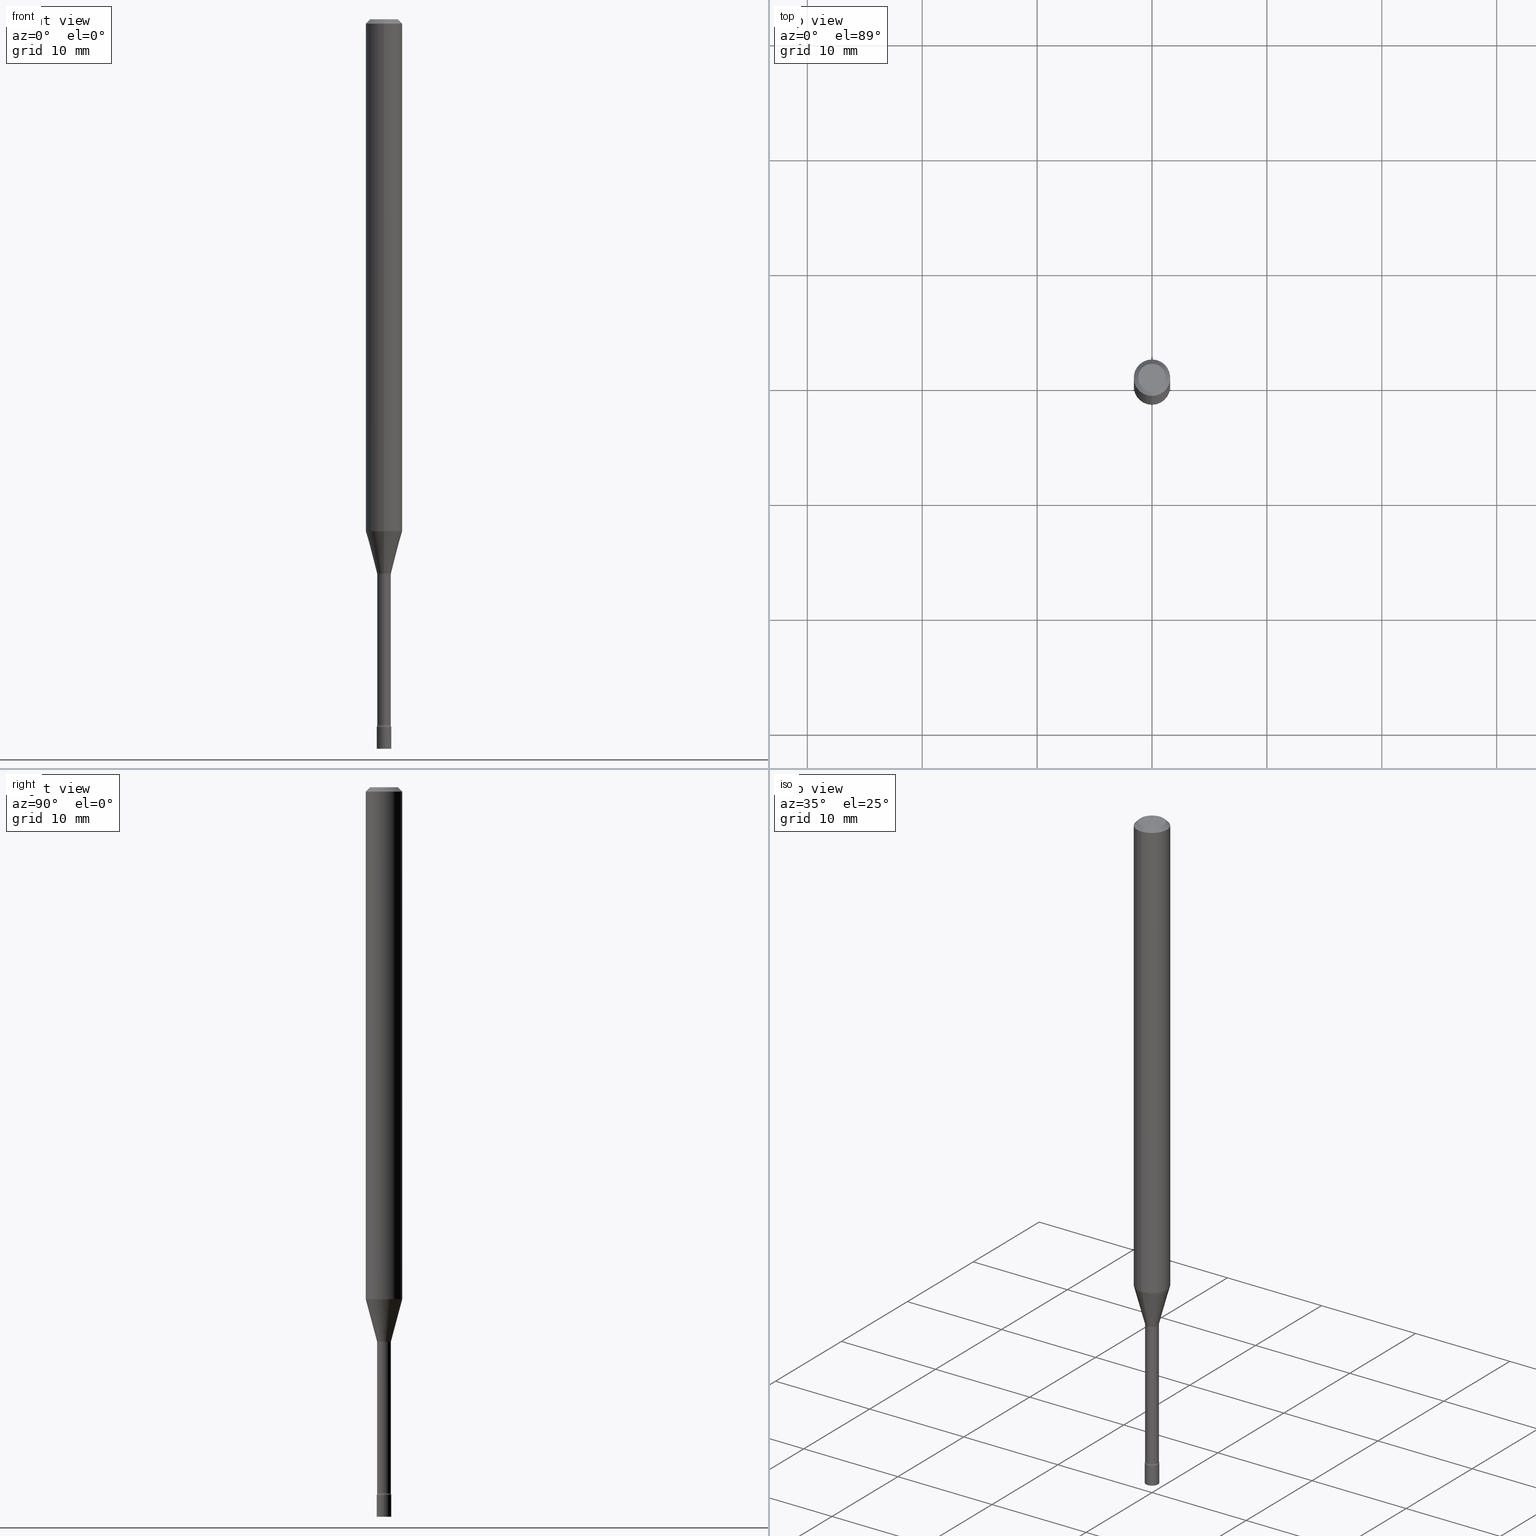
[diagram: canonical four-view strip — front | top / right | iso, engineering-drawing reading convention]
A machine part, canonical four-view strip (front | top / right | iso — engineering-drawing reading convention). The complete STEP part file that produces these views, byte-faithful:
ISO-10303-21;
HEADER;
FILE_DESCRIPTION (( 'STEP AP203' ),
    '1' );
FILE_NAME ('03599.STEP',
    '2024-03-08T22:02:00',
    ( '' ),
    ( '' ),
    'SwSTEP 2.0',
    'SolidWorks 2023',
    '' );
FILE_SCHEMA (( 'CONFIG_CONTROL_DESIGN' ));
ENDSEC;

DATA;
#1 = DIRECTION ( 'NONE',  ( -2.438088387897960049E-29, 3.491481338843145188E-15, 1.000000000000000000 ) ) ;
#2 = VERTEX_POINT ( 'NONE', #168 ) ;
#3 = CIRCLE ( 'NONE', #128, 0.02401111260566398189 ) ;
#4 = CARTESIAN_POINT ( 'NONE',  ( 0.02500000000000000139, -1.745740669421566924E-16, 1.219044193948984123E-30 ) ) ;
#5 = ORIENTED_EDGE ( 'NONE', *, *, #425, .T. ) ;
#6 = COORDINATED_UNIVERSAL_TIME_OFFSET ( 5, 0, .BEHIND. ) ;
#7 = CARTESIAN_POINT ( 'NONE',  ( 0.02500000000000000139, -8.641416313636785031E-15, -2.425000000000000266 ) ) ;
#8 = CALENDAR_DATE ( 2024, 8, 3 ) ;
#9 = EDGE_CURVE ( 'NONE', #40, #66, #244, .T. ) ;
#10 = APPLICATION_PROTOCOL_DEFINITION ( 'international standard', 'config_control_design', 1994, #520 ) ;
#11 = DIRECTION ( 'NONE',  ( -6.982962677686266711E-15, -1.000000000000000000, 0.000000000000000000 ) ) ;
#12 = LOCAL_TIME ( 17, 2, 0.000000000000000000, #334 ) ;
#13 = APPROVAL_STATUS ( 'not_yet_approved' ) ;
#14 = CARTESIAN_POINT ( 'NONE',  ( 1.706092163947695036E-16, 0.02401111260565735178, -1.898092501787273401 ) ) ;
#15 = EDGE_CURVE ( 'NONE', #270, #40, #210, .T. ) ;
#16 = LINE ( 'NONE', #94, #307 ) ;
#17 = CARTESIAN_POINT ( 'NONE',  ( 3.840629472727447874E-16, 0.04749999999999999362, -1.947592745229184365E-16 ) ) ;
#18 = CIRCLE ( 'NONE', #408, 0.02500000000000000139 ) ;
#19 = VERTEX_POINT ( 'NONE', #87 ) ;
#20 = APPROVAL_PERSON_ORGANIZATION ( #419, #357, #456 ) ;
#21 = FACE_OUTER_BOUND ( 'NONE', #305, .T. ) ;
#22 = ORIENTED_EDGE ( 'NONE', *, *, #114, .T. ) ;
#23 = EDGE_CURVE ( 'NONE', #2, #359, #254, .T. ) ;
#24 = CARTESIAN_POINT ( 'NONE',  ( -4.287811248607203282E-16, -0.06250000000000005551, -0.01499999999999981209 ) ) ;
#25 = ORIENTED_EDGE ( 'NONE', *, *, #179, .T. ) ;
#26 = EDGE_CURVE ( 'NONE', #66, #80, #127, .T. ) ;
#27 = APPLICATION_CONTEXT ( 'configuration controlled 3d designs of mechanical parts and assemblies' ) ;
#28 = CARTESIAN_POINT ( 'NONE',  ( -1.640996229256275231E-16, -0.02350000000000003475, 8.205007746749178948E-17 ) ) ;
#29 = ORIENTED_EDGE ( 'NONE', *, *, #494, .F. ) ;
#30 = CIRCLE ( 'NONE', #434, 0.01499999999999998557 ) ;
#31 = DIRECTION ( 'NONE',  ( -1.807323732225330928E-15, -0.2588190451025182970, 0.9659258262890689783 ) ) ;
#32 = ORIENTED_EDGE ( 'NONE', *, *, #125, .T. ) ;
#33 = ADVANCED_FACE ( 'NONE', ( #126 ), #73, .T. ) ;
#34 = DIRECTION ( 'NONE',  ( -2.445460901926682193E-29, 3.491492658191134624E-15, 1.000000000000000000 ) ) ;
#35 = VERTEX_POINT ( 'NONE', #428 ) ;
#36 = FACE_OUTER_BOUND ( 'NONE', #390, .T. ) ;
#37 = VERTEX_POINT ( 'NONE', #7 ) ;
#38 = AXIS2_PLACEMENT_3D ( 'NONE', #455, #458, #135 ) ;
#39 = DIRECTION ( 'NONE',  ( -2.445468806185136597E-29, 3.491481338843145583E-15, 1.000000000000000000 ) ) ;
#40 = VERTEX_POINT ( 'NONE', #387 ) ;
#41 = ADVANCED_FACE ( 'NONE', ( #498 ), #96, .T. ) ;
#42 = FACE_OUTER_BOUND ( 'NONE', #466, .T. ) ;
#43 = CARTESIAN_POINT ( 'NONE',  ( 4.290438924638068672E-29, -6.125649358772860371E-15, -1.754450018504814635 ) ) ;
#44 = DIRECTION ( 'NONE',  ( -2.445460901926682193E-29, 3.491492658191134624E-15, 1.000000000000000000 ) ) ;
#45 = DIRECTION ( 'NONE',  ( -6.982962677686265922E-15, -1.000000000000000000, 3.483106191921935554E-15 ) ) ;
#46 = CIRCLE ( 'NONE', #117, 0.06250000000000000000 ) ;
#47 = DATE_AND_TIME ( #60, #309 ) ;
#48 = DIRECTION ( 'NONE',  ( -6.982962677686265922E-15, -1.000000000000000000, 4.370956789862821150E-15 ) ) ;
#49 = DIRECTION ( 'NONE',  ( 0.000000000000000000, 0.000000000000000000, 1.000000000000000000 ) ) ;
#50 = EDGE_CURVE ( 'NONE', #2, #35, #3, .T. ) ;
#51 = DIRECTION ( 'NONE',  ( -6.982962677686265133E-15, -1.000000000000000000, 0.000000000000000000 ) ) ;
#52 = PERSON_AND_ORGANIZATION_ROLE ( 'creator' ) ;
#53 = EDGE_CURVE ( 'NONE', #209, #472, #424, .T. ) ;
#54 = CYLINDRICAL_SURFACE ( 'NONE', #202, 0.02500000000000000139 ) ;
#55 = DATE_AND_TIME ( #295, #212 ) ;
#56 = CIRCLE ( 'NONE', #354, 0.02401111260566398189 ) ;
#57 = CONICAL_SURFACE ( 'NONE', #118, 0.02401111260566398189, 0.2617993877991502960 ) ;
#58 = DIRECTION ( 'NONE',  ( -6.982962677686265133E-15, -1.000000000000000000, 0.000000000000000000 ) ) ;
#59 = EDGE_CURVE ( 'NONE', #116, #19, #516, .T. ) ;
#60 = CALENDAR_DATE ( 2024, 8, 3 ) ;
#61 = DIRECTION ( 'NONE',  ( -2.445460901926682193E-29, 3.491492658191134624E-15, 1.000000000000000000 ) ) ;
#62 = CARTESIAN_POINT ( 'NONE',  ( 4.651204979193061807E-29, -6.640731006494541112E-15, -1.901974787463811323 ) ) ;
#63 = FACE_OUTER_BOUND ( 'NONE', #164, .T. ) ;
#64 = ADVANCED_FACE ( 'NONE', ( #302 ), #308, .F. ) ;
#65 = AXIS2_PLACEMENT_3D ( 'NONE', #335, #253, #48 ) ;
#66 = VERTEX_POINT ( 'NONE', #376 ) ;
#67 = CC_DESIGN_APPROVAL ( #368, ( #192 ) ) ;
#68 = FACE_OUTER_BOUND ( 'NONE', #489, .T. ) ;
#69 = ADVANCED_FACE ( 'NONE', ( #220 ), #54, .T. ) ;
#70 = ORIENTED_EDGE ( 'NONE', *, *, #23, .T. ) ;
#71 = CARTESIAN_POINT ( 'NONE',  ( 1.669775429036237659E-16, 0.02350000000000003475, -8.205007746749178948E-17 ) ) ;
#72 = CYLINDRICAL_SURFACE ( 'NONE', #398, 0.02350000000000003475 ) ;
#73 = CONICAL_SURFACE ( 'NONE', #74, 0.06250000000000000000, 0.7853981633974483900 ) ;
#74 = AXIS2_PLACEMENT_3D ( 'NONE', #451, #198, #370 ) ;
#75 = EDGE_CURVE ( 'NONE', #270, #80, #16, .T. ) ;
#76 = CARTESIAN_POINT ( 'NONE',  ( -2.688440630908747196E-16, -0.03850000000000664696, -1.901974787463811323 ) ) ;
#77 = ORIENTED_EDGE ( 'NONE', *, *, #23, .F. ) ;
#78 = CARTESIAN_POINT ( 'NONE',  ( 7.070652384730451556E-46, -1.009508304567780622E-31, -2.891337325883952245E-17 ) ) ;
#79 = VERTEX_POINT ( 'NONE', #182 ) ;
#80 = VERTEX_POINT ( 'NONE', #423 ) ;
#81 = AXIS2_PLACEMENT_3D ( 'NONE', #251, #414, #45 ) ;
#82 = VECTOR ( 'NONE', #101, 39.37007874015748143 ) ;
#83 = CIRCLE ( 'NONE', #469, 0.02349999999999999659 ) ;
#84 = AXIS2_PLACEMENT_3D ( 'NONE', #78, #163, #484 ) ;
#85 = VERTEX_POINT ( 'NONE', #89 ) ;
#86 = DIRECTION ( 'NONE',  ( -2.445460901926682193E-29, 3.491492658191134624E-15, 1.000000000000000000 ) ) ;
#87 = CARTESIAN_POINT ( 'NONE',  ( -1.640996229255686543E-16, -0.02350000000000852102, -2.418461651584689509 ) ) ;
#88 = APPROVAL_ROLE ( '' ) ;
#89 = CARTESIAN_POINT ( 'NONE',  ( -1.640996229255807091E-16, -0.02350000000000664058, -1.901974787463811323 ) ) ;
#90 = AXIS2_PLACEMENT_3D ( 'NONE', #403, #206, #325 ) ;
#91 = EDGE_CURVE ( 'NONE', #290, #156, #372, .T. ) ;
#92 = VECTOR ( 'NONE', #195, 39.37007874015748143 ) ;
#93 = PRODUCT_DEFINITION_FORMATION_WITH_SPECIFIED_SOURCE ( 'ANY', '', #228, .NOT_KNOWN. ) ;
#94 = CARTESIAN_POINT ( 'NONE',  ( -4.364351673553916201E-16, -0.06250000000000000000, 2.182182911369459140E-16 ) ) ;
#95 = DIRECTION ( 'NONE',  ( 1.000000000000000000, 0.000000000000000000, 0.000000000000000000 ) ) ;
#96 = CYLINDRICAL_SURFACE ( 'NONE', #301, 0.02500000000000000139 ) ;
#97 = DATE_AND_TIME ( #180, #12 ) ;
#98 = DIRECTION ( 'NONE',  ( -2.445460901926682193E-29, 3.491492658191134624E-15, 1.000000000000000000 ) ) ;
#99 = COORDINATED_UNIVERSAL_TIME_OFFSET ( 5, 0, .BEHIND. ) ;
#100 = CIRCLE ( 'NONE', #461, 0.02500000000000000139 ) ;
#101 = DIRECTION ( 'NONE',  ( 1.839019923739601104E-15, 0.2588190451025250693, 0.9659258262890670910 ) ) ;
#102 = ADVANCED_FACE ( 'NONE', ( #141 ), #107, .F. ) ;
#103 = DIRECTION ( 'NONE',  ( 1.000000000000000000, -6.982962677686254878E-15, 0.000000000000000000 ) ) ;
#104 = CARTESIAN_POINT ( 'NONE',  ( 5.914253411759387848E-29, -8.444041100624749086E-15, -2.418461651584689509 ) ) ;
#105 = EDGE_LOOP ( 'NONE', ( #189, #150, #446, #313 ) ) ;
#106 = FACE_OUTER_BOUND ( 'NONE', #291, .T. ) ;
#107 = TOROIDAL_SURFACE ( 'NONE', #492, 0.03850000000000000644, 0.01500000000000002720 ) ;
#108 = ORIENTED_EDGE ( 'NONE', *, *, #53, .F. ) ;
#109 = AXIS2_PLACEMENT_3D ( 'NONE', #377, #49, #95 ) ;
#110 = DIRECTION ( 'NONE',  ( -6.982962677686267499E-15, -1.000000000000000000, 3.491492658191134624E-15 ) ) ;
#111 = DIRECTION ( 'NONE',  ( -2.445460901926682193E-29, 3.491492658191134624E-15, 1.000000000000000000 ) ) ;
#112 = ORIENTED_EDGE ( 'NONE', *, *, #153, .T. ) ;
#113 = EDGE_CURVE ( 'NONE', #359, #85, #83, .T. ) ;
#114 = EDGE_CURVE ( 'NONE', #227, #37, #507, .T. ) ;
#115 = CARTESIAN_POINT ( 'NONE',  ( 6.113672015462842613E-29, -8.728703347107864943E-15, -2.500000000000000000 ) ) ;
#116 = VERTEX_POINT ( 'NONE', #178 ) ;
#117 = AXIS2_PLACEMENT_3D ( 'NONE', #205, #44, #285 ) ;
#118 = AXIS2_PLACEMENT_3D ( 'NONE', #277, #34, #440 ) ;
#119 = DIRECTION ( 'NONE',  ( 1.000000000000000000, -6.982962677686265922E-15, 4.876176775795935793E-29 ) ) ;
#120 = ORIENTED_EDGE ( 'NONE', *, *, #184, .F. ) ;
#121 = ADVANCED_BREP_SHAPE_REPRESENTATION ( '03599', ( #155, #152, #109 ), #225 ) ;
#122 = PLANE ( 'NONE',  #508 ) ;
#123 = ADVANCED_FACE ( 'NONE', ( #493 ), #460, .T. ) ;
#124 = EDGE_LOOP ( 'NONE', ( #395, #22 ) ) ;
#125 = EDGE_CURVE ( 'NONE', #2, #40, #499, .T. ) ;
#126 = FACE_OUTER_BOUND ( 'NONE', #454, .T. ) ;
#127 = CIRCLE ( 'NONE', #81, 0.06250000000000000000 ) ;
#128 = AXIS2_PLACEMENT_3D ( 'NONE', #173, #98, #51 ) ;
#129 = PERSON ( 'UNSPECIFIED', 'UNSPECIFIED', 'UNSPECIFIED', ('UNSPECIFIED'), ('UNSPECIFIED'), ('UNSPECIFIED') ) ;
#130 = CARTESIAN_POINT ( 'NONE',  ( -0.02500000000000000139, 1.776356839400250563E-16, -1.229733772563726656E-30 ) ) ;
#131 = ORIENTED_EDGE ( 'NONE', *, *, #303, .T. ) ;
#132 = DIRECTION ( 'NONE',  ( -2.445460901926682193E-29, 3.491492658191134624E-15, 1.000000000000000000 ) ) ;
#133 = EDGE_CURVE ( 'NONE', #209, #66, #264, .T. ) ;
#134 = PERSON_AND_ORGANIZATION ( #129, #345 ) ;
#135 = DIRECTION ( 'NONE',  ( -6.982962677686266711E-15, -1.000000000000000000, 3.491492658191135018E-15 ) ) ;
#136 = AXIS2_PLACEMENT_3D ( 'NONE', #502, #348, #356 ) ;
#137 = COORDINATED_UNIVERSAL_TIME_OFFSET ( 5, 0, .BEHIND. ) ;
#138 = CARTESIAN_POINT ( 'NONE',  ( 5.930242687172204289E-29, -8.466869696113502724E-15, -2.425000000000000266 ) ) ;
#139 = DIRECTION ( 'NONE',  ( 1.000000000000000000, -6.982962677686267499E-15, 4.876176775795936353E-29 ) ) ;
#140 = PERSON_AND_ORGANIZATION_ROLE ( 'design_owner' ) ;
#141 = FACE_OUTER_BOUND ( 'NONE', #400, .T. ) ;
#142 = CIRCLE ( 'NONE', #286, 0.02500000000000000139 ) ;
#143 = CARTESIAN_POINT ( 'NONE',  ( 4.364351673553919652E-16, 0.06249999999999995143, -0.01500000000000024751 ) ) ;
#144 = DIRECTION ( 'NONE',  ( -6.982962677686265922E-15, -1.000000000000000000, 3.491492658191134624E-15 ) ) ;
#145 = EDGE_CURVE ( 'NONE', #40, #270, #478, .T. ) ;
#146 = DIRECTION ( 'NONE',  ( -6.982962677686265133E-15, -1.000000000000000000, 0.000000000000000000 ) ) ;
#147 = ORIENTED_EDGE ( 'NONE', *, *, #50, .F. ) ;
#148 = AXIS2_PLACEMENT_3D ( 'NONE', #438, #467, #144 ) ;
#149 = DIRECTION ( 'NONE',  ( -2.445460901926681912E-29, 3.491492658191134624E-15, 1.000000000000000000 ) ) ;
#150 = ORIENTED_EDGE ( 'NONE', *, *, #171, .T. ) ;
#151 = AXIS2_PLACEMENT_3D ( 'NONE', #250, #371, #364 ) ;
#152 = MANIFOLD_SOLID_BREP ( 'Body-Move/Copy2[2]', #317 ) ;
#153 = EDGE_CURVE ( 'NONE', #19, #85, #374, .T. ) ;
#154 = DIRECTION ( 'NONE',  ( -2.445460901926682193E-29, 3.491492658191134624E-15, 1.000000000000000000 ) ) ;
#155 = MANIFOLD_SOLID_BREP ( 'Body-Move/Copy2[1]', #362 ) ;
#156 = VERTEX_POINT ( 'NONE', #471 ) ;
#157 = CARTESIAN_POINT ( 'NONE',  ( 1.745740669422159556E-16, 0.02499999999999153247, -2.425000000000000266 ) ) ;
#158 = ORIENTED_EDGE ( 'NONE', *, *, #425, .F. ) ;
#159 = CARTESIAN_POINT ( 'NONE',  ( 6.113672015462842613E-29, -8.728703347107864943E-15, -2.500000000000000000 ) ) ;
#160 = ORIENTED_EDGE ( 'NONE', *, *, #153, .F. ) ;
#161 = VECTOR ( 'NONE', #392, 39.37007874015748143 ) ;
#162 = ADVANCED_FACE ( 'NONE', ( #106 ), #72, .T. ) ;
#163 = DIRECTION ( 'NONE',  ( -2.445460901926682193E-29, 3.491492658191134624E-15, 1.000000000000000000 ) ) ;
#164 = EDGE_LOOP ( 'NONE', ( #475, #230, #158, #196 ) ) ;
#165 = LINE ( 'NONE', #130, #233 ) ;
#166 = ORIENTED_EDGE ( 'NONE', *, *, #15, .F. ) ;
#167 = DIRECTION ( 'NONE',  ( -1.000000000000000000, 6.982962677686265922E-15, -4.883557194083112340E-29 ) ) ;
#168 = CARTESIAN_POINT ( 'NONE',  ( 3.073492131224375317E-16, 0.02401111260565734831, -1.898092501787273401 ) ) ;
#169 = AXIS2_PLACEMENT_3D ( 'NONE', #62, #388, #346 ) ;
#170 = SHAPE_DEFINITION_REPRESENTATION ( #342, #121 ) ;
#171 = EDGE_CURVE ( 'NONE', #116, #290, #447, .T. ) ;
#172 = ORIENTED_EDGE ( 'NONE', *, *, #389, .F. ) ;
#173 = CARTESIAN_POINT ( 'NONE',  ( 4.641711001360978521E-29, -6.627176034557907818E-15, -1.898092501787273401 ) ) ;
#174 = SECURITY_CLASSIFICATION_LEVEL ( 'unclassified' ) ;
#175 = DIRECTION ( 'NONE',  ( 4.937700262164548042E-15, 0.7071067811865451302, -0.7071067811865499042 ) ) ;
#176 = LOCAL_TIME ( 17, 2, 0.000000000000000000, #213 ) ;
#177 = APPLICATION_PROTOCOL_DEFINITION ( 'international standard', 'config_control_design', 1994, #27 ) ;
#178 = CARTESIAN_POINT ( 'NONE',  ( 1.723066134218837113E-16, 0.02349999999999163522, -2.418461651584689509 ) ) ;
#179 = EDGE_CURVE ( 'NONE', #19, #156, #30, .T. ) ;
#180 = CALENDAR_DATE ( 2024, 8, 3 ) ;
#181 = DIRECTION ( 'NONE',  ( -2.445460901926682193E-29, 3.491492658191134624E-15, 1.000000000000000000 ) ) ;
#182 = CARTESIAN_POINT ( 'NONE',  ( 0.02500000000000000139, -8.903277414050021610E-15, -2.500000000000000000 ) ) ;
#183 = DIRECTION ( 'NONE',  ( 1.000000000000000000, -7.105427357601001070E-15, 4.926315647164115359E-29 ) ) ;
#184 = EDGE_CURVE ( 'NONE', #35, #270, #436, .T. ) ;
#185 = ORIENTED_EDGE ( 'NONE', *, *, #113, .T. ) ;
#186 = DIRECTION ( 'NONE',  ( -2.445460901926682193E-29, 3.491492658191134624E-15, 1.000000000000000000 ) ) ;
#187 = EDGE_LOOP ( 'NONE', ( #147, #70, #185, #514 ) ) ;
#188 = LINE ( 'NONE', #71, #161 ) ;
#189 = ORIENTED_EDGE ( 'NONE', *, *, #59, .F. ) ;
#190 = VECTOR ( 'NONE', #479, 39.37007874015748143 ) ;
#191 = CARTESIAN_POINT ( 'NONE',  ( 5.930261854998957144E-29, -8.466842246694628363E-15, -2.425000000000000266 ) ) ;
#192 = SECURITY_CLASSIFICATION ( '', '', #174 ) ;
#193 = ORIENTED_EDGE ( 'NONE', *, *, #26, .F. ) ;
#194 = EDGE_CURVE ( 'NONE', #85, #359, #416, .T. ) ;
#195 = DIRECTION ( 'NONE',  ( -2.445460901926682193E-29, 3.491492658191134624E-15, 1.000000000000000000 ) ) ;
#196 = ORIENTED_EDGE ( 'NONE', *, *, #75, .F. ) ;
#197 = DIRECTION ( 'NONE',  ( 6.982962677686265922E-15, 1.000000000000000000, -3.491492658191134624E-15 ) ) ;
#198 = DIRECTION ( 'NONE',  ( 2.445460901926682193E-29, -3.491492658191134624E-15, -1.000000000000000000 ) ) ;
#199 = EDGE_CURVE ( 'NONE', #37, #227, #142, .T. ) ;
#200 = ORIENTED_EDGE ( 'NONE', *, *, #385, .T. ) ;
#201 = EDGE_CURVE ( 'NONE', #116, #359, #188, .T. ) ;
#202 = AXIS2_PLACEMENT_3D ( 'NONE', #261, #294, #421 ) ;
#203 = DIRECTION ( 'NONE',  ( -2.445468806185136597E-29, 3.491481338843145583E-15, 1.000000000000000000 ) ) ;
#204 = EDGE_LOOP ( 'NONE', ( #236, #248, #435, #397 ) ) ;
#205 = CARTESIAN_POINT ( 'NONE',  ( 3.668191352890030418E-31, -5.237238987286712930E-17, -0.01500000000000003067 ) ) ;
#206 = DIRECTION ( 'NONE',  ( 1.000000000000000000, -7.105427357601001070E-15, 4.926315647164115359E-29 ) ) ;
#207 = EDGE_CURVE ( 'NONE', #472, #80, #396, .T. ) ;
#208 = DIRECTION ( 'NONE',  ( -6.982962677686265922E-15, -1.000000000000000000, 3.491492658191134624E-15 ) ) ;
#209 = VERTEX_POINT ( 'NONE', #17 ) ;
#210 = CIRCLE ( 'NONE', #267, 0.06250000000000000000 ) ;
#211 = AXIS2_PLACEMENT_3D ( 'NONE', #496, #298, #215 ) ;
#212 = LOCAL_TIME ( 17, 2, 0.000000000000000000, #137 ) ;
#213 = COORDINATED_UNIVERSAL_TIME_OFFSET ( 5, 0, .BEHIND. ) ;
#214 = DIRECTION ( 'NONE',  ( -6.982962677686265133E-15, -1.000000000000000000, 0.000000000000000000 ) ) ;
#215 = DIRECTION ( 'NONE',  ( -6.982962677686265922E-15, -1.000000000000000000, 3.491492658191134624E-15 ) ) ;
#216 = CALENDAR_DATE ( 2024, 8, 3 ) ;
#217 = DIRECTION ( 'NONE',  ( -2.445460901926682193E-29, 3.491492658191134624E-15, 1.000000000000000000 ) ) ;
#218 = EDGE_CURVE ( 'NONE', #19, #116, #336, .T. ) ;
#219 = AXIS2_PLACEMENT_3D ( 'NONE', #257, #383, #420 ) ;
#220 = FACE_OUTER_BOUND ( 'NONE', #349, .T. ) ;
#221 = DIRECTION ( 'NONE',  ( -2.445460901926682193E-29, 3.491492658191134624E-15, 1.000000000000000000 ) ) ;
#222 = ADVANCED_FACE ( 'NONE', ( #68 ), #271, .T. ) ;
#223 = DIRECTION ( 'NONE',  ( -2.445468806185136597E-29, 3.491481338843145583E-15, 1.000000000000000000 ) ) ;
#224 = VECTOR ( 'NONE', #31, 39.37007874015748143 ) ;
#225 =( GEOMETRIC_REPRESENTATION_CONTEXT ( 3 ) GLOBAL_UNCERTAINTY_ASSIGNED_CONTEXT ( ( #274 ) ) GLOBAL_UNIT_ASSIGNED_CONTEXT ( ( #369, #289, #495 ) ) REPRESENTATION_CONTEXT ( 'NONE', 'WORKASPACE' ) );
#226 = FACE_OUTER_BOUND ( 'NONE', #347, .T. ) ;
#227 = VERTEX_POINT ( 'NONE', #511 ) ;
#228 = PRODUCT ( '03599', '03599', '', ( #256 ) ) ;
#229 = CARTESIAN_POINT ( 'NONE',  ( 0.000000000000000000, 0.000000000000000000, 0.000000000000000000 ) ) ;
#230 = ORIENTED_EDGE ( 'NONE', *, *, #9, .T. ) ;
#231 = DIRECTION ( 'NONE',  ( -2.445460901926682193E-29, 3.491492658191134624E-15, 1.000000000000000000 ) ) ;
#232 = ORIENTED_EDGE ( 'NONE', *, *, #133, .F. ) ;
#233 = VECTOR ( 'NONE', #413, 39.37007874015748143 ) ;
#234 = CARTESIAN_POINT ( 'NONE',  ( 0.000000000000000000, 0.000000000000000000, 0.000000000000000000 ) ) ;
#235 = CIRCLE ( 'NONE', #288, 0.01500000000000002720 ) ;
#236 = ORIENTED_EDGE ( 'NONE', *, *, #125, .F. ) ;
#237 = CARTESIAN_POINT ( 'NONE',  ( 3.316907271900976096E-16, 0.04749999999999999362, -1.803025878934986291E-16 ) ) ;
#238 = ORIENTED_EDGE ( 'NONE', *, *, #113, .F. ) ;
#239 = EDGE_CURVE ( 'NONE', #156, #290, #255, .T. ) ;
#240 = PRODUCT_DEFINITION ( 'UNKNOWN', '', #93, #432 ) ;
#241 = DIRECTION ( 'NONE',  ( -6.982962677686265133E-15, -1.000000000000000000, 0.000000000000000000 ) ) ;
#242 = ORIENTED_EDGE ( 'NONE', *, *, #194, .T. ) ;
#243 = LENGTH_MEASURE_WITH_UNIT ( LENGTH_MEASURE( 0.02539999999999999897 ), #322 );
#244 = LINE ( 'NONE', #519, #353 ) ;
#245 = AXIS2_PLACEMENT_3D ( 'NONE', #104, #186, #310 ) ;
#246 = AXIS2_PLACEMENT_3D ( 'NONE', #327, #86, #208 ) ;
#247 = DIRECTION ( 'NONE',  ( -6.982962677686267499E-15, -1.000000000000000000, 3.491492658191134624E-15 ) ) ;
#248 = ORIENTED_EDGE ( 'NONE', *, *, #50, .T. ) ;
#249 = ADVANCED_FACE ( 'NONE', ( #226 ), #312, .F. ) ;
#250 = CARTESIAN_POINT ( 'NONE',  ( 3.668191352890030418E-31, -5.237238987286712930E-17, -0.01500000000000003067 ) ) ;
#251 = CARTESIAN_POINT ( 'NONE',  ( 3.668191352890030418E-31, -5.237238987286712930E-17, -0.01500000000000003067 ) ) ;
#252 = PERSON_AND_ORGANIZATION_ROLE ( 'classification_officer' ) ;
#253 = DIRECTION ( 'NONE',  ( -2.445460901926682193E-29, 3.491492658191134624E-15, 1.000000000000000000 ) ) ;
#254 = CIRCLE ( 'NONE', #90, 0.01500000000000002720 ) ;
#255 = CIRCLE ( 'NONE', #486, 0.02500000000000000139 ) ;
#256 = MECHANICAL_CONTEXT ( 'NONE', #520, 'mechanical' ) ;
#257 = CARTESIAN_POINT ( 'NONE',  ( 1.745740669422178045E-16, 0.02499999999999127226, -2.500000000000000000 ) ) ;
#258 = APPROVAL_STATUS ( 'not_yet_approved' ) ;
#259 = DIRECTION ( 'NONE',  ( -2.445468806185136597E-29, 3.491481338843145583E-15, 1.000000000000000000 ) ) ;
#260 = PERSON_AND_ORGANIZATION_ROLE ( 'creator' ) ;
#261 = CARTESIAN_POINT ( 'NONE',  ( 0.000000000000000000, 0.000000000000000000, 0.000000000000000000 ) ) ;
#262 = AXIS2_PLACEMENT_3D ( 'NONE', #157, #149, #504 ) ;
#263 = PERSON_AND_ORGANIZATION ( #129, #345 ) ;
#264 = LINE ( 'NONE', #143, #379 ) ;
#265 = CYLINDRICAL_SURFACE ( 'NONE', #328, 0.06250000000000000000 ) ;
#266 = DIRECTION ( 'NONE',  ( -6.982962677686265133E-15, -1.000000000000000000, 0.000000000000000000 ) ) ;
#267 = AXIS2_PLACEMENT_3D ( 'NONE', #43, #367, #488 ) ;
#268 = AXIS2_PLACEMENT_3D ( 'NONE', #332, #491, #417 ) ;
#269 = DIRECTION ( 'NONE',  ( -1.000000000000000000, 6.982962677686265922E-15, -4.883557194083112340E-29 ) ) ;
#270 = VERTEX_POINT ( 'NONE', #473 ) ;
#271 = CYLINDRICAL_SURFACE ( 'NONE', #136, 0.06250000000000000000 ) ;
#272 = ORIENTED_EDGE ( 'NONE', *, *, #207, .T. ) ;
#273 = DIRECTION ( 'NONE',  ( -6.982962677686265922E-15, -1.000000000000000000, 3.491492658191134624E-15 ) ) ;
#274 = UNCERTAINTY_MEASURE_WITH_UNIT (LENGTH_MEASURE( 1.000000000000000082E-05 ), #369, 'distance_accuracy_value', 'NONE');
#275 = ORIENTED_EDGE ( 'NONE', *, *, #218, .F. ) ;
#276 = AXIS2_PLACEMENT_3D ( 'NONE', #237, #314, #197 ) ;
#277 = CARTESIAN_POINT ( 'NONE',  ( 4.641711001360978521E-29, -6.627176034557907818E-15, -1.898092501787273401 ) ) ;
#278 = AXIS2_PLACEMENT_3D ( 'NONE', #448, #402, #241 ) ;
#279 = ORIENTED_EDGE ( 'NONE', *, *, #201, .T. ) ;
#280 = ADVANCED_FACE ( 'NONE', ( #63 ), #265, .T. ) ;
#281 = DIRECTION ( 'NONE',  ( 1.000000000000000000, -6.982962677686254878E-15, 0.000000000000000000 ) ) ;
#282 = EDGE_LOOP ( 'NONE', ( #172, #485, #480, #441 ) ) ;
#283 = CARTESIAN_POINT ( 'NONE',  ( -0.02500000000000000139, -8.420137112961222238E-15, -2.500000000000000000 ) ) ;
#284 = ORIENTED_EDGE ( 'NONE', *, *, #171, .F. ) ;
#285 = DIRECTION ( 'NONE',  ( -6.982962677686265922E-15, -1.000000000000000000, 3.483106191921935554E-15 ) ) ;
#286 = AXIS2_PLACEMENT_3D ( 'NONE', #191, #223, #103 ) ;
#287 = ORIENTED_EDGE ( 'NONE', *, *, #239, .T. ) ;
#288 = AXIS2_PLACEMENT_3D ( 'NONE', #76, #167, #404 ) ;
#289 =( NAMED_UNIT ( * ) PLANE_ANGLE_UNIT ( ) SI_UNIT ( $, .RADIAN. ) );
#290 = VERTEX_POINT ( 'NONE', #351 ) ;
#291 = EDGE_LOOP ( 'NONE', ( #444, #279, #468, #160 ) ) ;
#292 = ADVANCED_FACE ( 'NONE', ( #429 ), #344, .F. ) ;
#293 = APPROVAL_STATUS ( 'not_yet_approved' ) ;
#294 = DIRECTION ( 'NONE',  ( -2.445468806185136597E-29, 3.491481338843145583E-15, 1.000000000000000000 ) ) ;
#295 = CALENDAR_DATE ( 2024, 8, 3 ) ;
#296 = CARTESIAN_POINT ( 'NONE',  ( 4.651204979193061807E-29, -6.640731006494541112E-15, -1.901974787463811323 ) ) ;
#297 = DATE_TIME_ROLE ( 'creation_date' ) ;
#298 = DIRECTION ( 'NONE',  ( -2.445460901926682193E-29, 3.491492658191134624E-15, 1.000000000000000000 ) ) ;
#299 = APPROVAL_DATE_TIME ( #97, #357 ) ;
#300 = DIRECTION ( 'NONE',  ( -6.982962677686265922E-15, -1.000000000000000000, 3.491492658191134624E-15 ) ) ;
#301 = AXIS2_PLACEMENT_3D ( 'NONE', #341, #259, #139 ) ;
#302 = FACE_OUTER_BOUND ( 'NONE', #187, .T. ) ;
#303 = EDGE_CURVE ( 'NONE', #35, #2, #56, .T. ) ;
#304 = CARTESIAN_POINT ( 'NONE',  ( -2.688440630908625416E-16, -0.03850000000000850658, -2.418461651584689509 ) ) ;
#305 = EDGE_LOOP ( 'NONE', ( #323, #311, #112, #238 ) ) ;
#306 = CARTESIAN_POINT ( 'NONE',  ( -1.676687031750273969E-16, -0.02401111260567060854, -1.898092501787273401 ) ) ;
#307 = VECTOR ( 'NONE', #61, 39.37007874015748143 ) ;
#308 = TOROIDAL_SURFACE ( 'NONE', #211, 0.03850000000000000644, 0.01500000000000002720 ) ;
#309 = LOCAL_TIME ( 17, 2, 0.000000000000000000, #99 ) ;
#310 = DIRECTION ( 'NONE',  ( -6.982962677686265133E-15, -1.000000000000000000, 0.000000000000000000 ) ) ;
#311 = ORIENTED_EDGE ( 'NONE', *, *, #59, .T. ) ;
#312 = PLANE ( 'NONE',  #262 ) ;
#313 = ORIENTED_EDGE ( 'NONE', *, *, #179, .F. ) ;
#314 = DIRECTION ( 'NONE',  ( 2.445460901926681912E-29, -3.491492658191134624E-15, -1.000000000000000000 ) ) ;
#315 = ORIENTED_EDGE ( 'NONE', *, *, #385, .F. ) ;
#316 = CC_DESIGN_PERSON_AND_ORGANIZATION_ASSIGNMENT ( #263, #490, ( #93 ) ) ;
#317 = CLOSED_SHELL ( 'NONE', ( #64, #162, #445, #33, #280, #515, #474, #222, #430, #401, #249, #292, #321, #102 ) ) ;
#318 = AXIS2_PLACEMENT_3D ( 'NONE', #463, #183, #399 ) ;
#319 = LINE ( 'NONE', #4, #190 ) ;
#320 = ORIENTED_EDGE ( 'NONE', *, *, #9, .F. ) ;
#321 = ADVANCED_FACE ( 'NONE', ( #21 ), #394, .T. ) ;
#322 =( LENGTH_UNIT ( ) NAMED_UNIT ( * ) SI_UNIT ( $, .METRE. ) );
#323 = ORIENTED_EDGE ( 'NONE', *, *, #201, .F. ) ;
#324 = CARTESIAN_POINT ( 'NONE',  ( 1.669775429036828812E-16, 0.02349999999999335606, -1.901974787463811323 ) ) ;
#325 = DIRECTION ( 'NONE',  ( 7.105427357601001859E-15, 1.000000000000000000, 0.000000000000000000 ) ) ;
#326 = EDGE_CURVE ( 'NONE', #79, #37, #319, .T. ) ;
#327 = CARTESIAN_POINT ( 'NONE',  ( 5.914272527905344176E-29, -8.444013725215716224E-15, -2.418461651584689509 ) ) ;
#328 = AXIS2_PLACEMENT_3D ( 'NONE', #229, #111, #273 ) ;
#329 = ORIENTED_EDGE ( 'NONE', *, *, #75, .T. ) ;
#330 = ORIENTED_EDGE ( 'NONE', *, *, #91, .F. ) ;
#331 = DATE_AND_TIME ( #8, #176 ) ;
#332 = CARTESIAN_POINT ( 'NONE',  ( 5.930261854998957144E-29, -8.466842246694628363E-15, -2.425000000000000266 ) ) ;
#333 = CC_DESIGN_PERSON_AND_ORGANIZATION_ASSIGNMENT ( #134, #140, ( #228 ) ) ;
#334 = COORDINATED_UNIVERSAL_TIME_OFFSET ( 5, 0, .BEHIND. ) ;
#335 = CARTESIAN_POINT ( 'NONE',  ( 4.290438924638068672E-29, -6.125649358772860371E-15, -1.754450018504814635 ) ) ;
#336 = CIRCLE ( 'NONE', #245, 0.02350000000000007985 ) ;
#337 = CC_DESIGN_APPROVAL ( #357, ( #93 ) ) ;
#338 = APPROVAL_DATE_TIME ( #331, #481 ) ;
#339 = CARTESIAN_POINT ( 'NONE',  ( 5.914253411759387848E-29, -8.444041100624749086E-15, -2.418461651584689509 ) ) ;
#340 = DATE_TIME_ROLE ( 'classification_date' ) ;
#341 = CARTESIAN_POINT ( 'NONE',  ( 0.000000000000000000, 0.000000000000000000, 0.000000000000000000 ) ) ;
#342 = PRODUCT_DEFINITION_SHAPE ( 'NONE', 'NONE',  #240 ) ;
#343 = CARTESIAN_POINT ( 'NONE',  ( 4.651220012893355916E-29, -6.640709477380055554E-15, -1.901974787463811323 ) ) ;
#344 = TOROIDAL_SURFACE ( 'NONE', #148, 0.03850000000000006195, 0.01499999999999998557 ) ;
#345 = ORGANIZATION ( 'UNSPECIFIED', 'UNSPECIFIED', '' ) ;
#346 = DIRECTION ( 'NONE',  ( -6.982962677686266711E-15, -1.000000000000000000, 0.000000000000000000 ) ) ;
#347 = EDGE_LOOP ( 'NONE', ( #510, #330 ) ) ;
#348 = DIRECTION ( 'NONE',  ( -2.445460901926682193E-29, 3.491492658191134624E-15, 1.000000000000000000 ) ) ;
#349 = EDGE_LOOP ( 'NONE', ( #200, #512, #352, #361 ) ) ;
#350 = CC_DESIGN_PERSON_AND_ORGANIZATION_ASSIGNMENT ( #375, #260, ( #93 ) ) ;
#351 = CARTESIAN_POINT ( 'NONE',  ( 1.776356839400842702E-16, 0.02499999999999152900, -2.425000000000000266 ) ) ;
#352 = ORIENTED_EDGE ( 'NONE', *, *, #199, .F. ) ;
#353 = VECTOR ( 'NONE', #132, 39.37007874015748143 ) ;
#354 = AXIS2_PLACEMENT_3D ( 'NONE', #465, #505, #266 ) ;
#355 = CIRCLE ( 'NONE', #84, 0.04749999999999999362 ) ;
#356 = DIRECTION ( 'NONE',  ( -6.982962677686265922E-15, -1.000000000000000000, 3.491492658191134624E-15 ) ) ;
#357 = APPROVAL ( #293, 'UNSPECIFIED' ) ;
#358 = DIRECTION ( 'NONE',  ( -4.851104656540964275E-15, -0.7071067811865500152, -0.7071067811865450192 ) ) ;
#359 = VERTEX_POINT ( 'NONE', #324 ) ;
#360 = DIRECTION ( 'NONE',  ( 1.000000000000000000, -6.982962677686254878E-15, 0.000000000000000000 ) ) ;
#361 = ORIENTED_EDGE ( 'NONE', *, *, #326, .F. ) ;
#362 = CLOSED_SHELL ( 'NONE', ( #69, #452, #41, #123 ) ) ;
#363 = VECTOR ( 'NONE', #358, 39.37007874015748143 ) ;
#364 = DIRECTION ( 'NONE',  ( 6.982962677686265922E-15, 1.000000000000000000, -3.483106191921935554E-15 ) ) ;
#365 = ORIENTED_EDGE ( 'NONE', *, *, #53, .T. ) ;
#366 = PLANE ( 'NONE',  #276 ) ;
#367 = DIRECTION ( 'NONE',  ( -2.445460901926682193E-29, 3.491492658191134624E-15, 1.000000000000000000 ) ) ;
#368 = APPROVAL ( #13, 'UNSPECIFIED' ) ;
#369 =( CONVERSION_BASED_UNIT ( 'INCH', #243 ) LENGTH_UNIT ( ) NAMED_UNIT ( #437 ) );
#370 = DIRECTION ( 'NONE',  ( 6.982962677686265922E-15, 1.000000000000000000, -3.483106191921935554E-15 ) ) ;
#371 = DIRECTION ( 'NONE',  ( 2.445460901926682193E-29, -3.491492658191134624E-15, -1.000000000000000000 ) ) ;
#372 = CIRCLE ( 'NONE', #391, 0.02500000000000000139 ) ;
#373 = EDGE_LOOP ( 'NONE', ( #315, #503 ) ) ;
#374 = LINE ( 'NONE', #28, #92 ) ;
#375 = PERSON_AND_ORGANIZATION ( #129, #345 ) ;
#376 = CARTESIAN_POINT ( 'NONE',  ( 4.440892098501058063E-16, 0.06249999999999995143, -0.01500000000000024751 ) ) ;
#377 = CARTESIAN_POINT ( 'NONE',  ( 0.000000000000000000, 0.000000000000000000, 0.000000000000000000 ) ) ;
#378 = DIRECTION ( 'NONE',  ( -2.445460901926682193E-29, 3.491492658191134624E-15, 1.000000000000000000 ) ) ;
#379 = VECTOR ( 'NONE', #175, 39.37007874015748143 ) ;
#380 = CONICAL_SURFACE ( 'NONE', #278, 0.02401111260566398189, 0.2617993877991502960 ) ;
#381 = APPROVAL_PERSON_ORGANIZATION ( #453, #481, #88 ) ;
#382 = PERSON_AND_ORGANIZATION ( #129, #345 ) ;
#383 = DIRECTION ( 'NONE',  ( 2.438088387897960049E-29, -3.491481338843145188E-15, -1.000000000000000000 ) ) ;
#384 = CC_DESIGN_PERSON_AND_ORGANIZATION_ASSIGNMENT ( #422, #252, ( #192 ) ) ;
#385 = EDGE_CURVE ( 'NONE', #79, #518, #100, .T. ) ;
#386 = APPROVAL_DATE_TIME ( #47, #368 ) ;
#387 = CARTESIAN_POINT ( 'NONE',  ( 4.440892098501052147E-16, 0.06249999999999384520, -1.754450018504814857 ) ) ;
#388 = DIRECTION ( 'NONE',  ( -2.445460901926682193E-29, 3.491492658191134624E-15, 1.000000000000000000 ) ) ;
#389 = EDGE_CURVE ( 'NONE', #518, #227, #165, .T. ) ;
#390 = EDGE_LOOP ( 'NONE', ( #433, #108, #483, #506 ) ) ;
#391 = AXIS2_PLACEMENT_3D ( 'NONE', #138, #181, #214 ) ;
#392 = DIRECTION ( 'NONE',  ( -2.445460901926682193E-29, 3.491492658191134624E-15, 1.000000000000000000 ) ) ;
#393 = CC_DESIGN_DATE_AND_TIME_ASSIGNMENT ( #55, #340, ( #192 ) ) ;
#394 = CYLINDRICAL_SURFACE ( 'NONE', #500, 0.02350000000000003475 ) ;
#395 = ORIENTED_EDGE ( 'NONE', *, *, #199, .T. ) ;
#396 = LINE ( 'NONE', #24, #363 ) ;
#397 = ORIENTED_EDGE ( 'NONE', *, *, #145, .F. ) ;
#398 = AXIS2_PLACEMENT_3D ( 'NONE', #234, #231, #110 ) ;
#399 = DIRECTION ( 'NONE',  ( 7.105427357601001859E-15, 1.000000000000000000, 0.000000000000000000 ) ) ;
#400 = EDGE_LOOP ( 'NONE', ( #77, #477, #409, #242 ) ) ;
#401 = ADVANCED_FACE ( 'NONE', ( #450 ), #366, .F. ) ;
#402 = DIRECTION ( 'NONE',  ( -2.445460901926682193E-29, 3.491492658191134624E-15, 1.000000000000000000 ) ) ;
#403 = CARTESIAN_POINT ( 'NONE',  ( 2.735589532676850615E-16, 0.03849999999999335898, -1.901974787463811323 ) ) ;
#404 = DIRECTION ( 'NONE',  ( -6.982962677686267499E-15, -1.000000000000000000, 0.000000000000000000 ) ) ;
#405 = EDGE_LOOP ( 'NONE', ( #365, #449 ) ) ;
#406 = AXIS2_PLACEMENT_3D ( 'NONE', #339, #221, #58 ) ;
#407 = DIRECTION ( 'NONE',  ( -2.445460901926682193E-29, 3.491492658191134624E-15, 1.000000000000000000 ) ) ;
#408 = AXIS2_PLACEMENT_3D ( 'NONE', #115, #203, #360 ) ;
#409 = ORIENTED_EDGE ( 'NONE', *, *, #457, .T. ) ;
#410 = CC_DESIGN_PERSON_AND_ORGANIZATION_ASSIGNMENT ( #427, #52, ( #240 ) ) ;
#411 = CARTESIAN_POINT ( 'NONE',  ( 0.000000000000000000, 0.000000000000000000, 0.000000000000000000 ) ) ;
#412 = EDGE_LOOP ( 'NONE', ( #284, #275, #25, #287 ) ) ;
#413 = DIRECTION ( 'NONE',  ( -2.445468806185136877E-29, 3.491481338843145188E-15, 1.000000000000000000 ) ) ;
#414 = DIRECTION ( 'NONE',  ( -2.445460901926682193E-29, 3.491492658191134624E-15, 1.000000000000000000 ) ) ;
#415 = CC_DESIGN_DATE_AND_TIME_ASSIGNMENT ( #459, #297, ( #240 ) ) ;
#416 = CIRCLE ( 'NONE', #169, 0.02349999999999999659 ) ;
#417 = DIRECTION ( 'NONE',  ( 1.000000000000000000, -6.982962677686254878E-15, 0.000000000000000000 ) ) ;
#418 = APPROVAL_PERSON_ORGANIZATION ( #382, #368, #497 ) ;
#419 = PERSON_AND_ORGANIZATION ( #129, #345 ) ;
#420 = DIRECTION ( 'NONE',  ( -1.000000000000000000, 6.982962677686265922E-15, -4.876176775795935793E-29 ) ) ;
#421 = DIRECTION ( 'NONE',  ( 1.000000000000000000, -6.982962677686267499E-15, 4.876176775795936353E-29 ) ) ;
#422 = PERSON_AND_ORGANIZATION ( #129, #345 ) ;
#423 = CARTESIAN_POINT ( 'NONE',  ( -4.364351673553912750E-16, -0.06250000000000005551, -0.01499999999999981209 ) ) ;
#424 = CIRCLE ( 'NONE', #38, 0.04749999999999999362 ) ;
#425 = EDGE_CURVE ( 'NONE', #80, #66, #46, .T. ) ;
#426 = LOCAL_TIME ( 17, 2, 0.000000000000000000, #6 ) ;
#427 = PERSON_AND_ORGANIZATION ( #129, #345 ) ;
#428 = CARTESIAN_POINT ( 'NONE',  ( -1.676687031750273969E-16, -0.02401111260567060854, -1.898092501787273401 ) ) ;
#429 = FACE_OUTER_BOUND ( 'NONE', #412, .T. ) ;
#430 = ADVANCED_FACE ( 'NONE', ( #36 ), #462, .T. ) ;
#431 = DIRECTION ( 'NONE',  ( -6.982962677686266711E-15, -1.000000000000000000, 0.000000000000000000 ) ) ;
#432 = DESIGN_CONTEXT ( 'detailed design', #27, 'design' ) ;
#433 = ORIENTED_EDGE ( 'NONE', *, *, #207, .F. ) ;
#434 = AXIS2_PLACEMENT_3D ( 'NONE', #304, #269, #431 ) ;
#435 = ORIENTED_EDGE ( 'NONE', *, *, #184, .T. ) ;
#436 = LINE ( 'NONE', #306, #224 ) ;
#437 = DIMENSIONAL_EXPONENTS ( 1.000000000000000000, 0.000000000000000000, 0.000000000000000000, 0.000000000000000000, 0.000000000000000000, 0.000000000000000000, 0.000000000000000000 ) ;
#438 = CARTESIAN_POINT ( 'NONE',  ( 5.914272527905344176E-29, -8.444013725215716224E-15, -2.418461651584689509 ) ) ;
#439 = ORIENTED_EDGE ( 'NONE', *, *, #145, .T. ) ;
#440 = DIRECTION ( 'NONE',  ( -6.982962677686265133E-15, -1.000000000000000000, 0.000000000000000000 ) ) ;
#441 = ORIENTED_EDGE ( 'NONE', *, *, #114, .F. ) ;
#442 = EDGE_CURVE ( 'NONE', #518, #79, #18, .T. ) ;
#443 = FACE_OUTER_BOUND ( 'NONE', #204, .T. ) ;
#444 = ORIENTED_EDGE ( 'NONE', *, *, #218, .T. ) ;
#445 = ADVANCED_FACE ( 'NONE', ( #513 ), #501, .F. ) ;
#446 = ORIENTED_EDGE ( 'NONE', *, *, #91, .T. ) ;
#447 = CIRCLE ( 'NONE', #318, 0.01499999999999998557 ) ;
#448 = CARTESIAN_POINT ( 'NONE',  ( 4.641711001360978521E-29, -6.627176034557907818E-15, -1.898092501787273401 ) ) ;
#449 = ORIENTED_EDGE ( 'NONE', *, *, #494, .T. ) ;
#450 = FACE_OUTER_BOUND ( 'NONE', #405, .T. ) ;
#451 = CARTESIAN_POINT ( 'NONE',  ( 3.668191352890030418E-31, -5.237238987286712930E-17, -0.01500000000000003067 ) ) ;
#452 = ADVANCED_FACE ( 'NONE', ( #482 ), #122, .T. ) ;
#453 = PERSON_AND_ORGANIZATION ( #129, #345 ) ;
#454 = EDGE_LOOP ( 'NONE', ( #29, #272, #5, #232 ) ) ;
#455 = CARTESIAN_POINT ( 'NONE',  ( 7.070652384730451556E-46, -1.009508304567780622E-31, -2.891337325883952245E-17 ) ) ;
#456 = APPROVAL_ROLE ( '' ) ;
#457 = EDGE_CURVE ( 'NONE', #35, #85, #235, .T. ) ;
#458 = DIRECTION ( 'NONE',  ( -2.445460901926682193E-29, 3.491492658191134624E-15, 1.000000000000000000 ) ) ;
#459 = DATE_AND_TIME ( #216, #426 ) ;
#460 = PLANE ( 'NONE',  #219 ) ;
#461 = AXIS2_PLACEMENT_3D ( 'NONE', #159, #39, #281 ) ;
#462 = CONICAL_SURFACE ( 'NONE', #151, 0.06250000000000000000, 0.7853981633974483900 ) ;
#463 = CARTESIAN_POINT ( 'NONE',  ( 2.735589532676981270E-16, 0.03849999999999162426, -2.418461651584689509 ) ) ;
#464 = PRODUCT_RELATED_PRODUCT_CATEGORY ( 'detail', '', ( #228 ) ) ;
#465 = CARTESIAN_POINT ( 'NONE',  ( 4.641711001360978521E-29, -6.627176034557907818E-15, -1.898092501787273401 ) ) ;
#466 = EDGE_LOOP ( 'NONE', ( #131, #32, #166, #120 ) ) ;
#467 = DIRECTION ( 'NONE',  ( -2.445460901926682193E-29, 3.491492658191134624E-15, 1.000000000000000000 ) ) ;
#468 = ORIENTED_EDGE ( 'NONE', *, *, #194, .F. ) ;
#469 = AXIS2_PLACEMENT_3D ( 'NONE', #296, #378, #11 ) ;
#470 = CC_DESIGN_APPROVAL ( #481, ( #240 ) ) ;
#471 = CARTESIAN_POINT ( 'NONE',  ( -1.745740669420973060E-16, -0.02500000000000845990, -2.425000000000000266 ) ) ;
#472 = VERTEX_POINT ( 'NONE', #487 ) ;
#473 = CARTESIAN_POINT ( 'NONE',  ( -4.364351673553489230E-16, -0.06250000000000614786, -1.754450018504814190 ) ) ;
#474 = ADVANCED_FACE ( 'NONE', ( #443 ), #57, .T. ) ;
#475 = ORIENTED_EDGE ( 'NONE', *, *, #15, .T. ) ;
#476 = CARTESIAN_POINT ( 'NONE',  ( 5.930261854998957144E-29, -8.466842246694628363E-15, -2.425000000000000266 ) ) ;
#477 = ORIENTED_EDGE ( 'NONE', *, *, #303, .F. ) ;
#478 = CIRCLE ( 'NONE', #65, 0.06250000000000000000 ) ;
#479 = DIRECTION ( 'NONE',  ( -2.445468806185136877E-29, 3.491481338843145188E-15, 1.000000000000000000 ) ) ;
#480 = ORIENTED_EDGE ( 'NONE', *, *, #326, .T. ) ;
#481 = APPROVAL ( #258, 'UNSPECIFIED' ) ;
#482 = FACE_OUTER_BOUND ( 'NONE', #124, .T. ) ;
#483 = ORIENTED_EDGE ( 'NONE', *, *, #133, .T. ) ;
#484 = DIRECTION ( 'NONE',  ( -6.982962677686266711E-15, -1.000000000000000000, 3.491492658191135018E-15 ) ) ;
#485 = ORIENTED_EDGE ( 'NONE', *, *, #442, .T. ) ;
#486 = AXIS2_PLACEMENT_3D ( 'NONE', #509, #154, #146 ) ;
#487 = CARTESIAN_POINT ( 'NONE',  ( -3.773273898774340269E-16, -0.04749999999999999362, 1.369325280052393547E-16 ) ) ;
#488 = DIRECTION ( 'NONE',  ( -6.982962677686265922E-15, -1.000000000000000000, 4.370956789862821150E-15 ) ) ;
#489 = EDGE_LOOP ( 'NONE', ( #320, #439, #329, #193 ) ) ;
#490 = PERSON_AND_ORGANIZATION_ROLE ( 'design_supplier' ) ;
#491 = DIRECTION ( 'NONE',  ( -2.445468806185136597E-29, 3.491481338843145583E-15, 1.000000000000000000 ) ) ;
#492 = AXIS2_PLACEMENT_3D ( 'NONE', #343, #217, #300 ) ;
#493 = FACE_OUTER_BOUND ( 'NONE', #373, .T. ) ;
#494 = EDGE_CURVE ( 'NONE', #472, #209, #355, .T. ) ;
#495 =( NAMED_UNIT ( * ) SI_UNIT ( $, .STERADIAN. ) SOLID_ANGLE_UNIT ( ) );
#496 = CARTESIAN_POINT ( 'NONE',  ( 4.651220012893355916E-29, -6.640709477380055554E-15, -1.901974787463811323 ) ) ;
#497 = APPROVAL_ROLE ( '' ) ;
#498 = FACE_OUTER_BOUND ( 'NONE', #282, .T. ) ;
#499 = LINE ( 'NONE', #14, #82 ) ;
#500 = AXIS2_PLACEMENT_3D ( 'NONE', #411, #407, #247 ) ;
#501 = TOROIDAL_SURFACE ( 'NONE', #246, 0.03850000000000006195, 0.01499999999999998557 ) ;
#502 = CARTESIAN_POINT ( 'NONE',  ( 0.000000000000000000, 0.000000000000000000, 0.000000000000000000 ) ) ;
#503 = ORIENTED_EDGE ( 'NONE', *, *, #442, .F. ) ;
#504 = DIRECTION ( 'NONE',  ( -6.982962677686265922E-15, -1.000000000000000000, 3.491492658191134624E-15 ) ) ;
#505 = DIRECTION ( 'NONE',  ( -2.445460901926682193E-29, 3.491492658191134624E-15, 1.000000000000000000 ) ) ;
#506 = ORIENTED_EDGE ( 'NONE', *, *, #26, .T. ) ;
#507 = CIRCLE ( 'NONE', #268, 0.02500000000000000139 ) ;
#508 = AXIS2_PLACEMENT_3D ( 'NONE', #476, #1, #119 ) ;
#509 = CARTESIAN_POINT ( 'NONE',  ( 5.930242687172204289E-29, -8.466869696113502724E-15, -2.425000000000000266 ) ) ;
#510 = ORIENTED_EDGE ( 'NONE', *, *, #239, .F. ) ;
#511 = CARTESIAN_POINT ( 'NONE',  ( -0.02500000000000000139, -8.420137112961222238E-15, -2.425000000000000266 ) ) ;
#512 = ORIENTED_EDGE ( 'NONE', *, *, #389, .T. ) ;
#513 = FACE_OUTER_BOUND ( 'NONE', #105, .T. ) ;
#514 = ORIENTED_EDGE ( 'NONE', *, *, #457, .F. ) ;
#515 = ADVANCED_FACE ( 'NONE', ( #42 ), #380, .T. ) ;
#516 = CIRCLE ( 'NONE', #406, 0.02350000000000007985 ) ;
#517 = CC_DESIGN_SECURITY_CLASSIFICATION ( #192, ( #93 ) ) ;
#518 = VERTEX_POINT ( 'NONE', #283 ) ;
#519 = CARTESIAN_POINT ( 'NONE',  ( 4.440892098500625669E-16, 0.06250000000000000000, -2.182182911369459140E-16 ) ) ;
#520 = APPLICATION_CONTEXT ( 'configuration controlled 3d designs of mechanical parts and assemblies' ) ;
ENDSEC;
END-ISO-10303-21;
